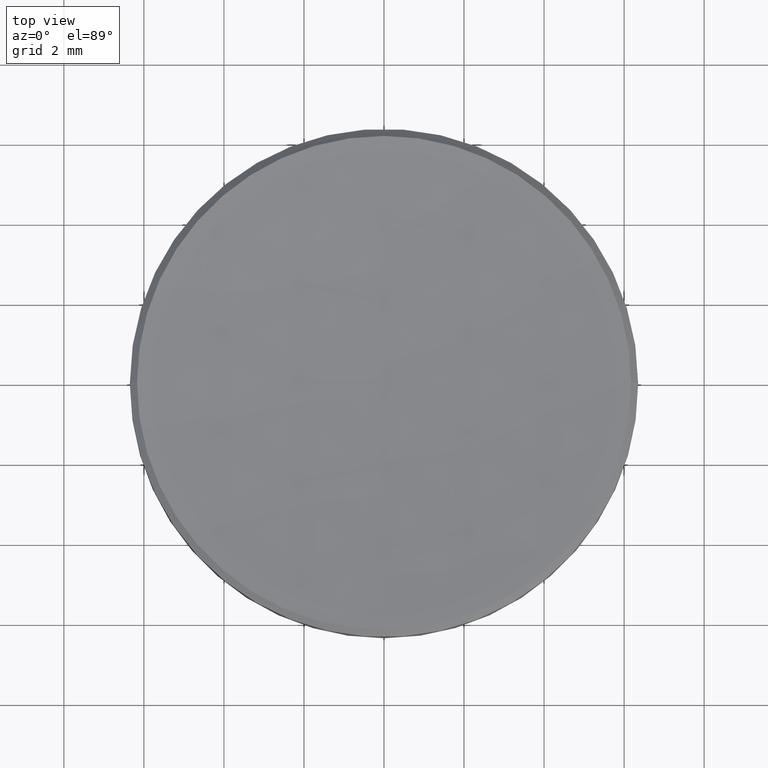
[diagram: clean part render]
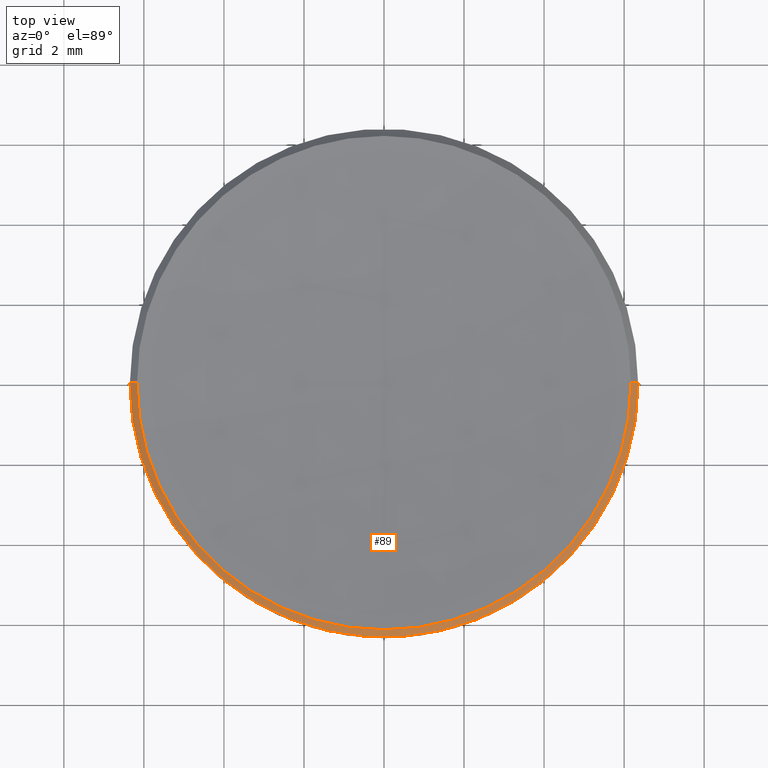
[diagram: same view with one face highlighted and labeled with its STEP entity id]
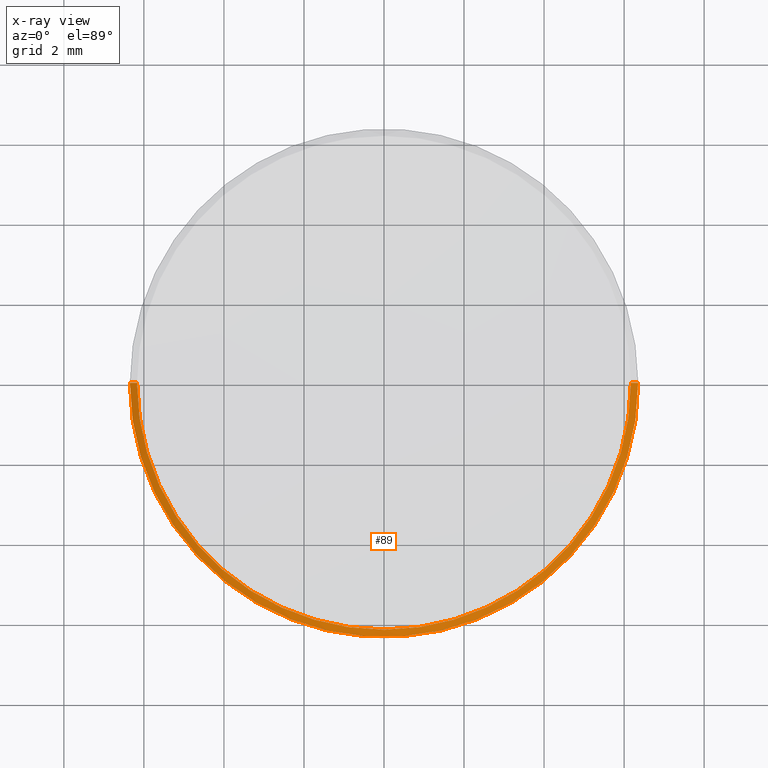
[diagram: x-ray of the same camera — body ghosted, the highlighted face saturated]
A machine part, top view. The second image highlights one B-rep face of the part: STEP entity #89.
The next image is the same camera in x-ray: the body ghosted, the highlighted face saturated — about 0% of this face is hidden behind the body in this view.
In plain terms, the highlighted conical surface has half-angle 45 deg.
Its self-contained STEP definition (entity closure, byte-faithful):
#4 = CARTESIAN_POINT ( 'NONE',  ( -6.349999999999999645, 0.000000000000000000, 5.800000000000006928 ) ) ;
#10 = VERTEX_POINT ( 'NONE', #230 ) ;
#13 = CONICAL_SURFACE ( 'NONE', #178, 6.171335389634268864, 0.7853981633974822518 ) ;
#15 = CARTESIAN_POINT ( 'NONE',  ( -6.171335389634259094, 0.000000000000000000, 5.978664610365738596 ) ) ;
#28 = ORIENTED_EDGE ( 'NONE', *, *, #46, .F. ) ;
#33 = VERTEX_POINT ( 'NONE', #122 ) ;
#37 = VECTOR ( 'NONE', #130, 999.9999999999998863 ) ;
#43 = CARTESIAN_POINT ( 'NONE',  ( 0.000000000000000000, 0.000000000000000000, 5.978664610365738596 ) ) ;
#46 = EDGE_CURVE ( 'NONE', #54, #33, #98, .T. ) ;
#53 = ORIENTED_EDGE ( 'NONE', *, *, #199, .T. ) ;
#54 = VERTEX_POINT ( 'NONE', #63 ) ;
#63 = CARTESIAN_POINT ( 'NONE',  ( 6.171335389634259094, 7.667106652983034787E-16, 5.978664610365738596 ) ) ;
#70 = DIRECTION ( 'NONE',  ( 0.000000000000000000, 0.000000000000000000, -1.000000000000000000 ) ) ;
#71 = EDGE_CURVE ( 'NONE', #10, #54, #189, .T. ) ;
#72 = AXIS2_PLACEMENT_3D ( 'NONE', #208, #171, #248 ) ;
#73 = ORIENTED_EDGE ( 'NONE', *, *, #114, .F. ) ;
#76 = DIRECTION ( 'NONE',  ( 1.000000000000000000, 0.000000000000000000, 0.000000000000000000 ) ) ;
#89 = ADVANCED_FACE ( 'NONE', ( #115 ), #13, .T. ) ;
#90 = VERTEX_POINT ( 'NONE', #4 ) ;
#98 = LINE ( 'NONE', #210, #160 ) ;
#114 = EDGE_CURVE ( 'NONE', #33, #90, #254, .T. ) ;
#115 = FACE_OUTER_BOUND ( 'NONE', #184, .T. ) ;
#122 = CARTESIAN_POINT ( 'NONE',  ( 6.349999999999999645, 7.776507174585692163E-16, 5.800000000000006928 ) ) ;
#127 = CARTESIAN_POINT ( 'NONE',  ( 0.000000000000000000, 0.000000000000000000, 5.978664610365738596 ) ) ;
#128 = DIRECTION ( 'NONE',  ( -0.000000000000000000, -0.000000000000000000, 1.000000000000000000 ) ) ;
#130 = DIRECTION ( 'NONE',  ( -0.7071067811865716646, 0.000000000000000000, -0.7071067811865234809 ) ) ;
#132 = DIRECTION ( 'NONE',  ( 1.000000000000000000, 0.000000000000000000, 0.000000000000000000 ) ) ;
#137 = DIRECTION ( 'NONE',  ( -0.000000000000000000, -0.000000000000000000, 1.000000000000000000 ) ) ;
#149 = CARTESIAN_POINT ( 'NONE',  ( -6.171335389634268864, 0.000000000000000000, 5.978664610365724386 ) ) ;
#154 = AXIS2_PLACEMENT_3D ( 'NONE', #43, #128, #132 ) ;
#160 = VECTOR ( 'NONE', #187, 999.9999999999998863 ) ;
#165 = CARTESIAN_POINT ( 'NONE',  ( 0.000000000000000000, 0.000000000000000000, 5.978664610365724386 ) ) ;
#171 = DIRECTION ( 'NONE',  ( 0.000000000000000000, 0.000000000000000000, -1.000000000000000000 ) ) ;
#173 = LINE ( 'NONE', #149, #37 ) ;
#178 = AXIS2_PLACEMENT_3D ( 'NONE', #165, #70, #246 ) ;
#184 = EDGE_LOOP ( 'NONE', ( #28, #211, #268, #53, #73 ) ) ;
#187 = DIRECTION ( 'NONE',  ( 0.7071067811865716646, 8.659560562355227448E-17, -0.7071067811865234809 ) ) ;
#189 = CIRCLE ( 'NONE', #264, 6.171335389634259094 ) ;
#199 = EDGE_CURVE ( 'NONE', #243, #90, #173, .T. ) ;
#208 = CARTESIAN_POINT ( 'NONE',  ( 0.000000000000000000, 0.000000000000000000, 5.800000000000006928 ) ) ;
#210 = CARTESIAN_POINT ( 'NONE',  ( 6.171335389634268864, 7.557706131380392202E-16, 5.978664610365724386 ) ) ;
#211 = ORIENTED_EDGE ( 'NONE', *, *, #71, .F. ) ;
#230 = CARTESIAN_POINT ( 'NONE',  ( -7.557706131380439534E-16, -6.171335389634308832, 5.978664610365742149 ) ) ;
#242 = EDGE_CURVE ( 'NONE', #243, #10, #261, .T. ) ;
#243 = VERTEX_POINT ( 'NONE', #15 ) ;
#246 = DIRECTION ( 'NONE',  ( -1.000000000000000000, 0.000000000000000000, 0.000000000000000000 ) ) ;
#248 = DIRECTION ( 'NONE',  ( 1.000000000000000000, 0.000000000000000000, 0.000000000000000000 ) ) ;
#254 = CIRCLE ( 'NONE', #72, 6.349999999999999645 ) ;
#261 = CIRCLE ( 'NONE', #154, 6.171335389634259094 ) ;
#264 = AXIS2_PLACEMENT_3D ( 'NONE', #127, #137, #76 ) ;
#268 = ORIENTED_EDGE ( 'NONE', *, *, #242, .F. ) ;